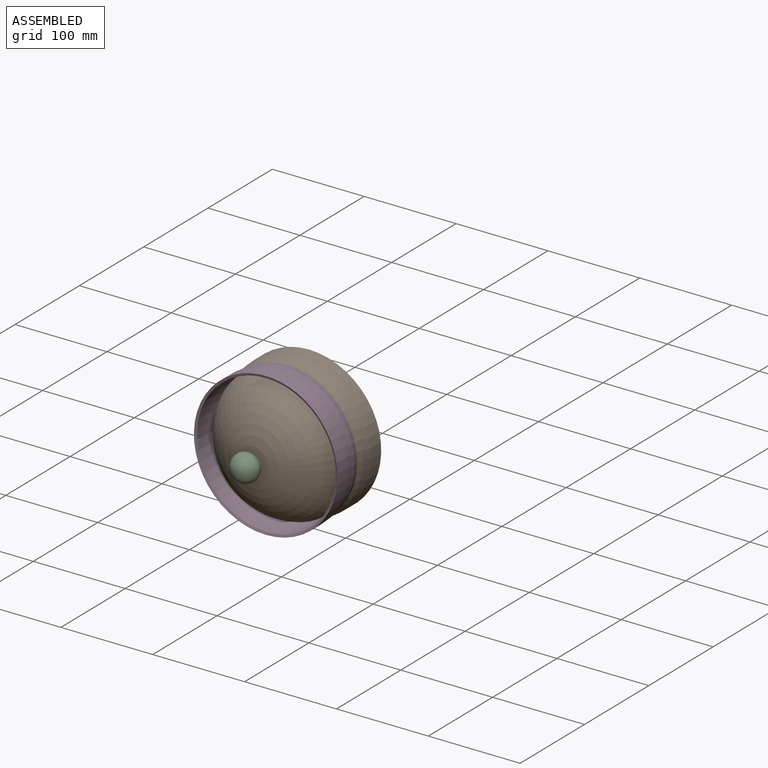
[diagram: assembled view]
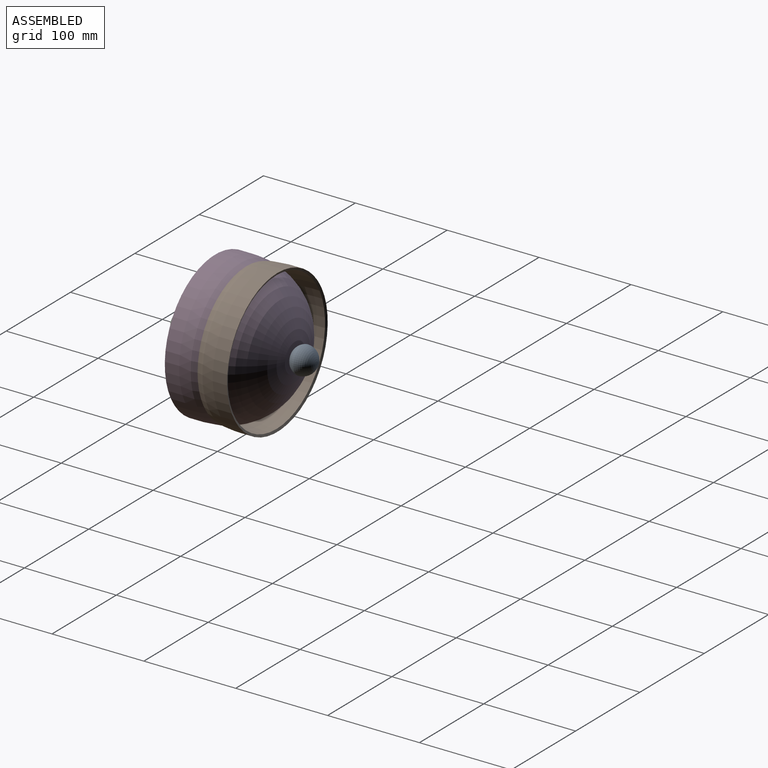
[diagram: assembled view, second angle]
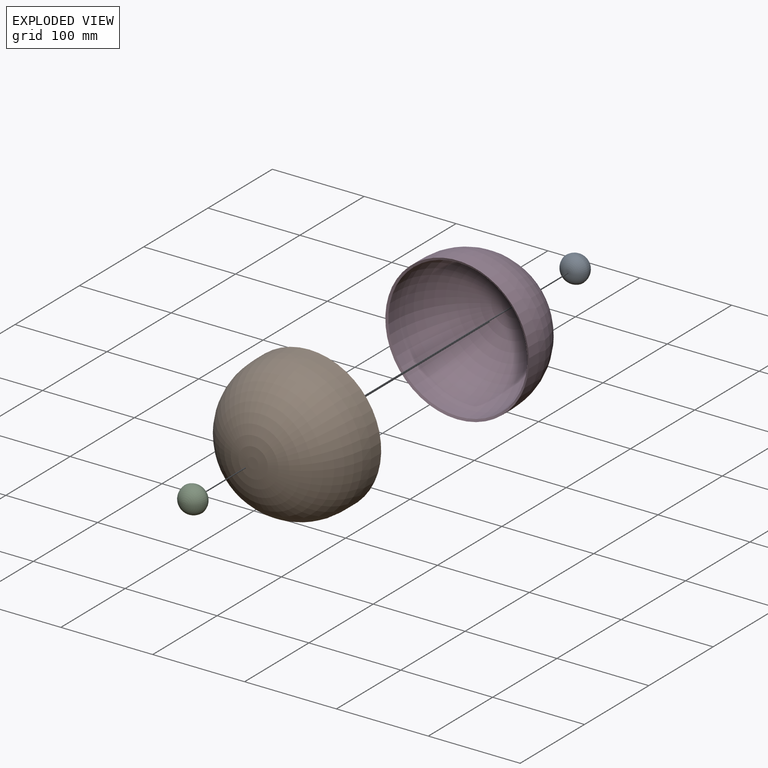
[diagram: exploded view]
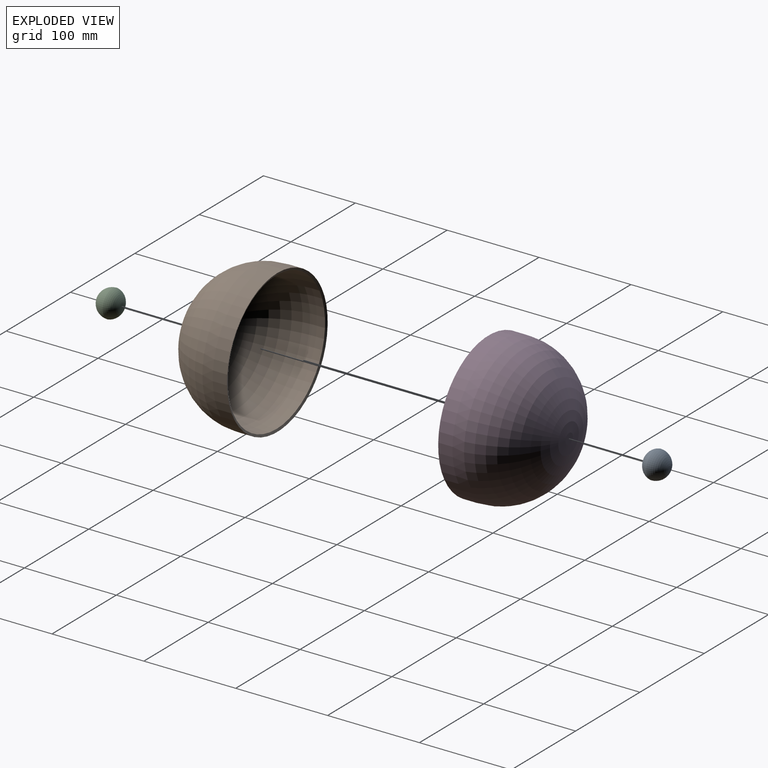
[diagram: exploded view, second angle]
ASSEMBLY  parts=4 mates=3
PART A: 4 faces, bbox 29.4x29.4x25.4 mm
  f0: plane 0.22x0.22mm, normal (0,0,1), area 0mm2, adj f2
  f1: plane 4.02x4.02mm, normal (0,0,-1), area 12.7mm2, adj f3
  f2: torus R=0.11mm, axis (0,0,1), area 1356.2mm2, adj f0,f3
  f3: torus R=2.01mm, axis (0,0,-1), area 1102.2mm2, adj f1,f2
PART B: 7 faces, bbox 156.4x87.9x156.4 mm
  f0: cylinder r=78.22mm len=156.44mm, axis (0,-1,0), area 7647.9mm2, adj f2,f6
  f1: plane 11.72x11.72mm, normal (0,1,0), area 107.9mm2, adj f2
  f2: torus R=5.86mm, axis (0,-1,0), area 37083.5mm2, adj f0,f1
  f3: plane 0.51x0.51mm, normal (0,-1,0), area 0.2mm2, adj f4
  f4: torus R=0.26mm, axis (0,-1,0), area 35934.6mm2, adj f3,f5
  f5: cylinder r=75.68mm len=151.36mm, axis (0,-1,0), area 4233.6mm2, adj f4,f6
  f6: cone r=75.68mm half-angle=67.5deg, axis (0,-1,0), area 1329.3mm2, adj f0,f5
PART C: same geometry as A
PART D: same geometry as B
PLACE A rot(axis=(-1,0,0),90deg) t=(-57.22,242.32,193.12)mm
PLACE B rot(axis=(1,0,0),180deg) t=(-57.22,296.84,194.89)mm
PLACE C rot(axis=(1,0,0),90deg) t=(-57.22,137.32,193.12)mm
PLACE D t=(-57.22,85.87,191.35)mm
MATE ball A.f2 <-> D.f0  axis (0,-1,0) through (-57.22,245.38,193.12)mm
MATE ball C.f2 <-> B.f0  axis (0,1,0) through (-57.22,137.32,193.12)mm
MATE cylindrical D.f0 <-> B.f0  axis (0,-1,0) through (-57.22,158.52,193.12)mm
